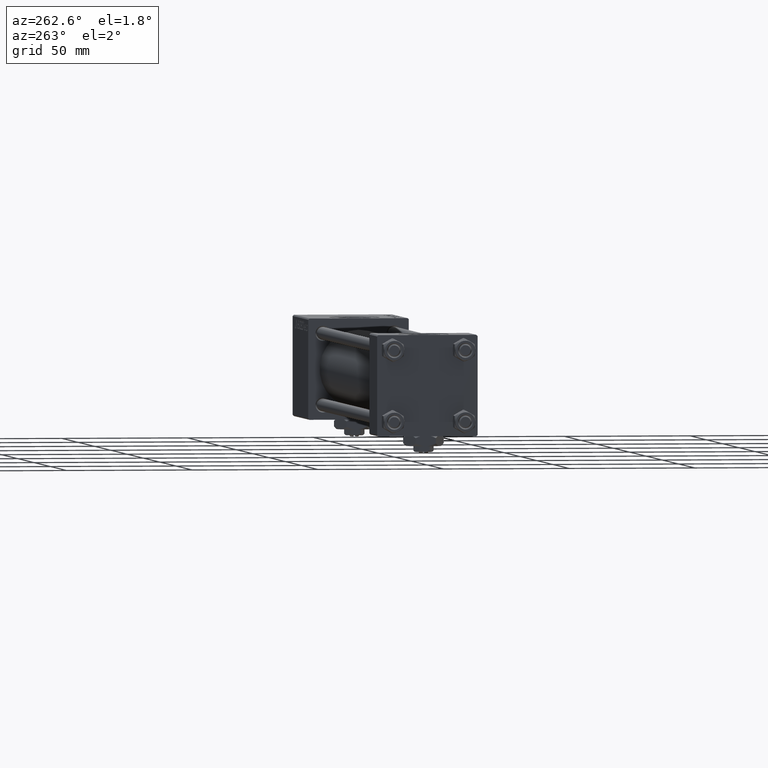
[diagram: clean part render]
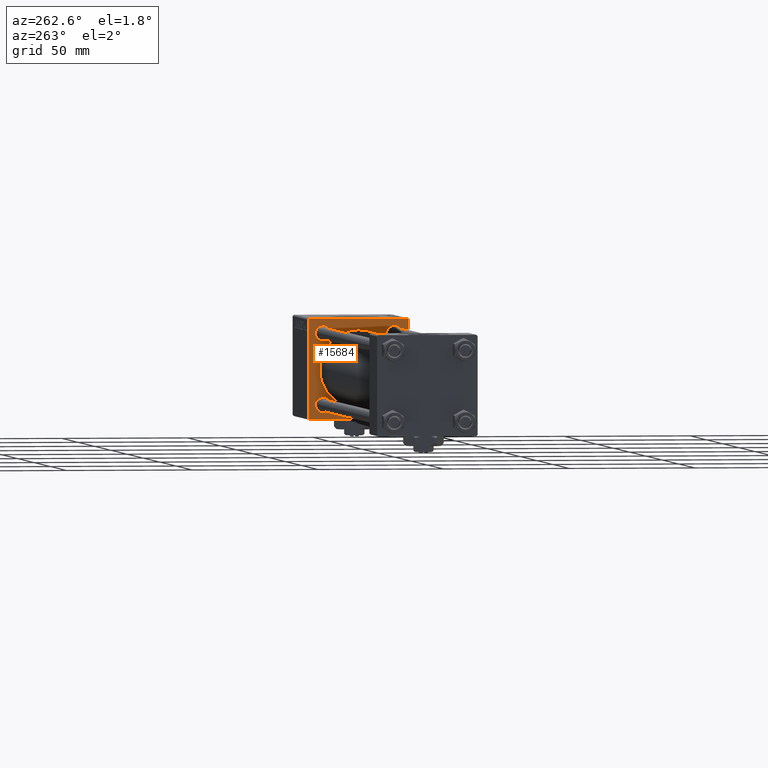
[diagram: same view with one face highlighted and labeled with its STEP entity id]
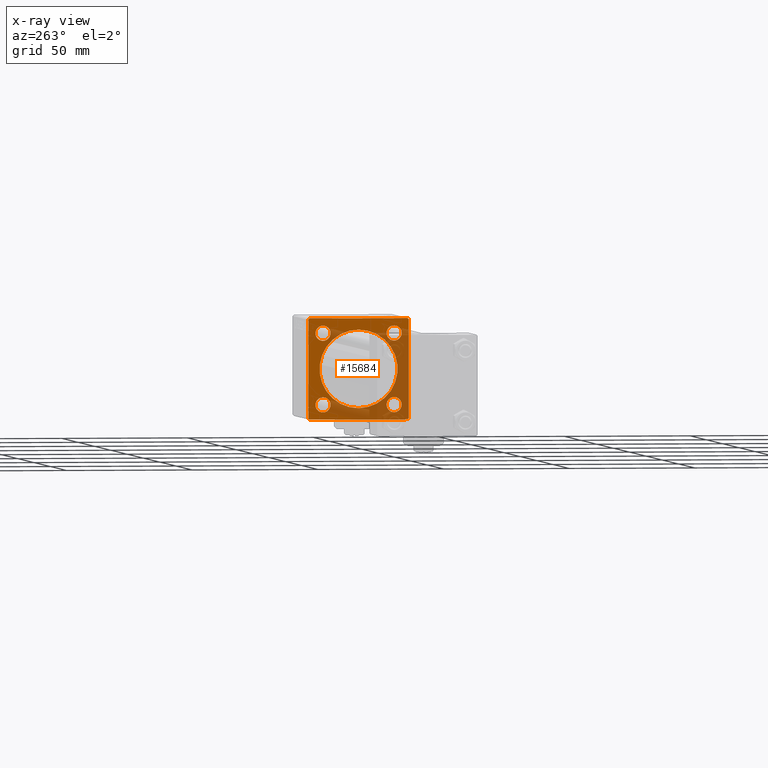
[diagram: x-ray of the same camera — body ghosted, the highlighted face saturated]
A machine part, auxiliary view. The second image highlights one B-rep face of the part: STEP entity #15684.
The next image is the same camera in x-ray: the body ghosted, the highlighted face saturated — about 47% of this face is hidden behind the body in this view.
In plain terms, the highlighted planar face has unit normal (-1, 0, 0).
Its self-contained STEP definition (entity closure, byte-faithful):
#75 = DIRECTION ( 'NONE',  ( 1.000000000000000000, 0.000000000000000000, 0.000000000000000000 ) ) ;
#728 = CIRCLE ( 'NONE', #51206, 3.000000000000004441 ) ;
#1265 = VERTEX_POINT ( 'NONE', #21354 ) ;
#1359 = CARTESIAN_POINT ( 'NONE',  ( 211.0000000000000000, 14.15000000000000036, 14.15000000000000036 ) ) ;
#1870 = VERTEX_POINT ( 'NONE', #7034 ) ;
#2232 = VERTEX_POINT ( 'NONE', #25380 ) ;
#3651 = AXIS2_PLACEMENT_3D ( 'NONE', #1359, #49317, #36931 ) ;
#4549 = AXIS2_PLACEMENT_3D ( 'NONE', #42421, #50079, #13975 ) ;
#5020 = EDGE_CURVE ( 'NONE', #1265, #51375, #19454, .T. ) ;
#5291 = PLANE ( 'NONE',  #4549 ) ;
#5565 = CARTESIAN_POINT ( 'NONE',  ( 211.0000000000000000, -20.00000000000000355, 19.50000000000002487 ) ) ;
#5827 = EDGE_CURVE ( 'NONE', #9705, #2232, #26220, .T. ) ;
#5895 = DIRECTION ( 'NONE',  ( 1.000000000000000000, 0.000000000000000000, 0.000000000000000000 ) ) ;
#5941 = CIRCLE ( 'NONE', #39613, 3.000000000000004441 ) ;
#6284 = DIRECTION ( 'NONE',  ( 1.000000000000000000, 0.000000000000000000, 0.000000000000000000 ) ) ;
#6431 = CARTESIAN_POINT ( 'NONE',  ( 211.0000000000000000, 19.99999999999999645, -19.50000000000000000 ) ) ;
#6702 = EDGE_CURVE ( 'NONE', #22552, #23600, #16183, .T. ) ;
#6711 = CARTESIAN_POINT ( 'NONE',  ( 211.0000000000000000, 14.15000000000000036, -17.15000000000000568 ) ) ;
#6972 = VERTEX_POINT ( 'NONE', #5565 ) ;
#7034 = CARTESIAN_POINT ( 'NONE',  ( 211.0000000000000000, 19.49999999999999645, -20.00000000000000000 ) ) ;
#7746 = EDGE_LOOP ( 'NONE', ( #8206, #32877, #32028, #27002, #10789, #30474, #43911, #12232 ) ) ;
#8206 = ORIENTED_EDGE ( 'NONE', *, *, #45152, .T. ) ;
#8807 = EDGE_LOOP ( 'NONE', ( #20201, #12100 ) ) ;
#8986 = VECTOR ( 'NONE', #17167, 1000.000000000000000 ) ;
#9705 = VERTEX_POINT ( 'NONE', #6711 ) ;
#10585 = DIRECTION ( 'NONE',  ( 1.000000000000000000, 0.000000000000000000, 0.000000000000000000 ) ) ;
#10789 = ORIENTED_EDGE ( 'NONE', *, *, #26759, .F. ) ;
#12100 = ORIENTED_EDGE ( 'NONE', *, *, #5827, .T. ) ;
#12232 = ORIENTED_EDGE ( 'NONE', *, *, #15954, .T. ) ;
#12757 = CIRCLE ( 'NONE', #30415, 3.000000000000004441 ) ;
#12765 = AXIS2_PLACEMENT_3D ( 'NONE', #39404, #31999, #27789 ) ;
#13049 = VECTOR ( 'NONE', #25177, 1000.000000000000114 ) ;
#13134 = VERTEX_POINT ( 'NONE', #27032 ) ;
#13531 = DIRECTION ( 'NONE',  ( 0.000000000000000000, -1.000000000000000000, -8.673617379884035472E-17 ) ) ;
#13684 = VECTOR ( 'NONE', #30166, 1000.000000000000000 ) ;
#13855 = ORIENTED_EDGE ( 'NONE', *, *, #39433, .T. ) ;
#13975 = DIRECTION ( 'NONE',  ( -0.000000000000000000, 0.000000000000000000, 1.000000000000000000 ) ) ;
#14490 = FACE_OUTER_BOUND ( 'NONE', #7746, .T. ) ;
#14977 = DIRECTION ( 'NONE',  ( 0.000000000000000000, 0.000000000000000000, 1.000000000000000000 ) ) ;
#15323 = CARTESIAN_POINT ( 'NONE',  ( 211.0000000000000000, -20.00000000000000000, -19.49999999999999645 ) ) ;
#15684 = ADVANCED_FACE ( 'NONE', ( #41912, #34508, #37953, #21884, #41391, #14490 ), #5291, .T. ) ;
#15954 = EDGE_CURVE ( 'NONE', #42156, #1870, #26451, .T. ) ;
#16061 = VECTOR ( 'NONE', #38820, 1000.000000000000000 ) ;
#16183 = CIRCLE ( 'NONE', #19531, 3.000000000000004441 ) ;
#16328 = VERTEX_POINT ( 'NONE', #15323 ) ;
#16926 = AXIS2_PLACEMENT_3D ( 'NONE', #22360, #18660, #50808 ) ;
#17167 = DIRECTION ( 'NONE',  ( 0.000000000000000000, 8.673617379884036705E-17, -1.000000000000000000 ) ) ;
#17506 = DIRECTION ( 'NONE',  ( 1.000000000000000000, 0.000000000000000000, 0.000000000000000000 ) ) ;
#17740 = LINE ( 'NONE', #45412, #40192 ) ;
#17758 = DIRECTION ( 'NONE',  ( 0.000000000000000000, 0.000000000000000000, -1.000000000000000000 ) ) ;
#17935 = EDGE_CURVE ( 'NONE', #20658, #22783, #49688, .T. ) ;
#18600 = EDGE_CURVE ( 'NONE', #22783, #42156, #23212, .T. ) ;
#18610 = ORIENTED_EDGE ( 'NONE', *, *, #50946, .T. ) ;
#18660 = DIRECTION ( 'NONE',  ( 1.000000000000000000, 0.000000000000000000, 0.000000000000000000 ) ) ;
#19239 = EDGE_LOOP ( 'NONE', ( #13855, #33271 ) ) ;
#19454 = CIRCLE ( 'NONE', #16926, 15.50000000000000000 ) ;
#19521 = CARTESIAN_POINT ( 'NONE',  ( 211.0000000000000000, 19.99999999999999645, 20.00000000000000000 ) ) ;
#19531 = AXIS2_PLACEMENT_3D ( 'NONE', #46461, #5895, #31166 ) ;
#19717 = CARTESIAN_POINT ( 'NONE',  ( 211.0000000000000000, -19.75000000000055067, -19.74999999999945288 ) ) ;
#19974 = DIRECTION ( 'NONE',  ( 0.000000000000000000, 0.000000000000000000, 1.000000000000000000 ) ) ;
#20201 = ORIENTED_EDGE ( 'NONE', *, *, #50084, .T. ) ;
#20234 = LINE ( 'NONE', #19717, #21676 ) ;
#20658 = VERTEX_POINT ( 'NONE', #25502 ) ;
#20737 = VERTEX_POINT ( 'NONE', #21807 ) ;
#21354 = CARTESIAN_POINT ( 'NONE',  ( 211.0000000000000000, -2.602085213965210642E-15, 15.50000000000000000 ) ) ;
#21676 = VECTOR ( 'NONE', #47638, 1000.000000000000000 ) ;
#21807 = CARTESIAN_POINT ( 'NONE',  ( 211.0000000000000000, -14.15000000000000036, -11.14999999999999680 ) ) ;
#21884 = FACE_BOUND ( 'NONE', #39995, .T. ) ;
#22078 = ORIENTED_EDGE ( 'NONE', *, *, #37525, .T. ) ;
#22360 = CARTESIAN_POINT ( 'NONE',  ( 211.0000000000000000, -2.602085213965210642E-15, 0.000000000000000000 ) ) ;
#22502 = CARTESIAN_POINT ( 'NONE',  ( 211.0000000000000000, 19.74999999999999645, -19.74999999999999645 ) ) ;
#22552 = VERTEX_POINT ( 'NONE', #31430 ) ;
#22624 = EDGE_CURVE ( 'NONE', #6972, #16328, #24821, .T. ) ;
#22783 = VERTEX_POINT ( 'NONE', #29157 ) ;
#23019 = CARTESIAN_POINT ( 'NONE',  ( 211.0000000000000000, -19.74999999999945999, 19.75000000000055067 ) ) ;
#23212 = LINE ( 'NONE', #19521, #31554 ) ;
#23600 = VERTEX_POINT ( 'NONE', #31887 ) ;
#23990 = AXIS2_PLACEMENT_3D ( 'NONE', #50171, #17506, #17758 ) ;
#24380 = DIRECTION ( 'NONE',  ( 0.000000000000000000, 0.000000000000000000, 1.000000000000000000 ) ) ;
#24821 = LINE ( 'NONE', #36938, #8986 ) ;
#25177 = DIRECTION ( 'NONE',  ( 0.000000000000000000, 0.7071067811865474617, -0.7071067811865474617 ) ) ;
#25380 = CARTESIAN_POINT ( 'NONE',  ( 211.0000000000000000, 14.15000000000000036, -11.14999999999999680 ) ) ;
#25502 = CARTESIAN_POINT ( 'NONE',  ( 211.0000000000000000, 19.49999999999999645, 20.00000000000000000 ) ) ;
#26220 = CIRCLE ( 'NONE', #12765, 3.000000000000004441 ) ;
#26331 = EDGE_LOOP ( 'NONE', ( #32143, #18610 ) ) ;
#26355 = CIRCLE ( 'NONE', #3651, 3.000000000000004441 ) ;
#26451 = LINE ( 'NONE', #22502, #38207 ) ;
#26566 = CARTESIAN_POINT ( 'NONE',  ( 211.0000000000000000, -14.15000000000000036, -14.15000000000000036 ) ) ;
#26759 = EDGE_CURVE ( 'NONE', #20658, #36890, #17740, .T. ) ;
#27002 = ORIENTED_EDGE ( 'NONE', *, *, #41330, .T. ) ;
#27032 = CARTESIAN_POINT ( 'NONE',  ( 211.0000000000000000, 14.15000000000000036, 11.14999999999999680 ) ) ;
#27789 = DIRECTION ( 'NONE',  ( 0.000000000000000000, 0.000000000000000000, 1.000000000000000000 ) ) ;
#28503 = CARTESIAN_POINT ( 'NONE',  ( 211.0000000000000000, 14.15000000000000036, 17.15000000000000568 ) ) ;
#28613 = LINE ( 'NONE', #44680, #13684 ) ;
#29157 = CARTESIAN_POINT ( 'NONE',  ( 211.0000000000000000, 19.99999999999999645, 19.50000000000000000 ) ) ;
#29425 = EDGE_CURVE ( 'NONE', #44116, #16328, #20234, .T. ) ;
#29885 = CIRCLE ( 'NONE', #39149, 3.000000000000004441 ) ;
#30166 = DIRECTION ( 'NONE',  ( 0.000000000000000000, -1.000000000000000000, 0.000000000000000000 ) ) ;
#30361 = ORIENTED_EDGE ( 'NONE', *, *, #51551, .T. ) ;
#30415 = AXIS2_PLACEMENT_3D ( 'NONE', #47636, #31034, #19974 ) ;
#30474 = ORIENTED_EDGE ( 'NONE', *, *, #17935, .T. ) ;
#31034 = DIRECTION ( 'NONE',  ( 1.000000000000000000, 0.000000000000000000, 0.000000000000000000 ) ) ;
#31088 = VERTEX_POINT ( 'NONE', #28503 ) ;
#31166 = DIRECTION ( 'NONE',  ( 0.000000000000000000, 0.000000000000000000, 1.000000000000000000 ) ) ;
#31398 = DIRECTION ( 'NONE',  ( 0.000000000000000000, 0.000000000000000000, 1.000000000000000000 ) ) ;
#31430 = CARTESIAN_POINT ( 'NONE',  ( 211.0000000000000000, -14.15000000000000036, 11.14999999999999503 ) ) ;
#31554 = VECTOR ( 'NONE', #51663, 1000.000000000000000 ) ;
#31887 = CARTESIAN_POINT ( 'NONE',  ( 211.0000000000000000, -14.15000000000000036, 17.15000000000000568 ) ) ;
#31999 = DIRECTION ( 'NONE',  ( 1.000000000000000000, 0.000000000000000000, 0.000000000000000000 ) ) ;
#32020 = DIRECTION ( 'NONE',  ( 1.000000000000000000, 0.000000000000000000, 0.000000000000000000 ) ) ;
#32028 = ORIENTED_EDGE ( 'NONE', *, *, #22624, .F. ) ;
#32143 = ORIENTED_EDGE ( 'NONE', *, *, #5020, .T. ) ;
#32413 = EDGE_CURVE ( 'NONE', #32677, #20737, #728, .T. ) ;
#32677 = VERTEX_POINT ( 'NONE', #43043 ) ;
#32810 = ORIENTED_EDGE ( 'NONE', *, *, #6702, .T. ) ;
#32877 = ORIENTED_EDGE ( 'NONE', *, *, #29425, .T. ) ;
#33271 = ORIENTED_EDGE ( 'NONE', *, *, #46597, .T. ) ;
#33293 = ORIENTED_EDGE ( 'NONE', *, *, #32413, .T. ) ;
#34508 = FACE_BOUND ( 'NONE', #19239, .T. ) ;
#36890 = VERTEX_POINT ( 'NONE', #45055 ) ;
#36931 = DIRECTION ( 'NONE',  ( 0.000000000000000000, 0.000000000000000000, 1.000000000000000000 ) ) ;
#36938 = CARTESIAN_POINT ( 'NONE',  ( 211.0000000000000000, -20.00000000000000355, 19.99999999999999645 ) ) ;
#37525 = EDGE_CURVE ( 'NONE', #23600, #22552, #5941, .T. ) ;
#37818 = CARTESIAN_POINT ( 'NONE',  ( 211.0000000000000000, 19.74999999999999645, 19.74999999999999645 ) ) ;
#37953 = FACE_BOUND ( 'NONE', #8807, .T. ) ;
#38207 = VECTOR ( 'NONE', #42782, 1000.000000000000114 ) ;
#38289 = EDGE_LOOP ( 'NONE', ( #22078, #32810 ) ) ;
#38771 = CARTESIAN_POINT ( 'NONE',  ( 211.0000000000000000, -14.15000000000000036, 14.15000000000000036 ) ) ;
#38820 = DIRECTION ( 'NONE',  ( -0.000000000000000000, 0.7071067811865671127, 0.7071067811865279218 ) ) ;
#39149 = AXIS2_PLACEMENT_3D ( 'NONE', #26566, #6284, #14977 ) ;
#39404 = CARTESIAN_POINT ( 'NONE',  ( 211.0000000000000000, 14.15000000000000036, -14.15000000000000036 ) ) ;
#39433 = EDGE_CURVE ( 'NONE', #31088, #13134, #12757, .T. ) ;
#39613 = AXIS2_PLACEMENT_3D ( 'NONE', #38771, #10585, #31398 ) ;
#39995 = EDGE_LOOP ( 'NONE', ( #30361, #33293 ) ) ;
#40126 = CARTESIAN_POINT ( 'NONE',  ( 211.0000000000000000, 14.15000000000000036, -14.15000000000000036 ) ) ;
#40192 = VECTOR ( 'NONE', #13531, 1000.000000000000000 ) ;
#40806 = AXIS2_PLACEMENT_3D ( 'NONE', #40126, #75, #48296 ) ;
#41330 = EDGE_CURVE ( 'NONE', #6972, #36890, #47784, .T. ) ;
#41391 = FACE_BOUND ( 'NONE', #26331, .T. ) ;
#41912 = FACE_BOUND ( 'NONE', #38289, .T. ) ;
#42156 = VERTEX_POINT ( 'NONE', #6431 ) ;
#42421 = CARTESIAN_POINT ( 'NONE',  ( 211.0000000000000000, 0.000000000000000000, 0.000000000000000000 ) ) ;
#42782 = DIRECTION ( 'NONE',  ( -0.000000000000000000, -0.7071067811865474617, -0.7071067811865474617 ) ) ;
#43043 = CARTESIAN_POINT ( 'NONE',  ( 211.0000000000000000, -14.15000000000000036, -17.15000000000000568 ) ) ;
#43911 = ORIENTED_EDGE ( 'NONE', *, *, #18600, .T. ) ;
#44116 = VERTEX_POINT ( 'NONE', #52064 ) ;
#44680 = CARTESIAN_POINT ( 'NONE',  ( 211.0000000000000000, 19.99999999999999645, -20.00000000000000000 ) ) ;
#45055 = CARTESIAN_POINT ( 'NONE',  ( 211.0000000000000000, -19.50000000000000355, 19.99999999999999645 ) ) ;
#45152 = EDGE_CURVE ( 'NONE', #1870, #44116, #28613, .T. ) ;
#45412 = CARTESIAN_POINT ( 'NONE',  ( 211.0000000000000000, 19.99999999999999645, 20.00000000000000000 ) ) ;
#46461 = CARTESIAN_POINT ( 'NONE',  ( 211.0000000000000000, -14.15000000000000036, 14.15000000000000036 ) ) ;
#46597 = EDGE_CURVE ( 'NONE', #13134, #31088, #26355, .T. ) ;
#46699 = CIRCLE ( 'NONE', #23990, 15.50000000000000000 ) ;
#47636 = CARTESIAN_POINT ( 'NONE',  ( 211.0000000000000000, 14.15000000000000036, 14.15000000000000036 ) ) ;
#47638 = DIRECTION ( 'NONE',  ( 0.000000000000000000, -0.7071067811865279218, 0.7071067811865672237 ) ) ;
#47784 = LINE ( 'NONE', #23019, #16061 ) ;
#48296 = DIRECTION ( 'NONE',  ( 0.000000000000000000, 0.000000000000000000, 1.000000000000000000 ) ) ;
#48418 = CIRCLE ( 'NONE', #40806, 3.000000000000004441 ) ;
#48628 = CARTESIAN_POINT ( 'NONE',  ( 211.0000000000000000, -14.15000000000000036, -14.15000000000000036 ) ) ;
#49005 = CARTESIAN_POINT ( 'NONE',  ( 211.0000000000000000, -7.038826752868131828E-16, -15.50000000000000000 ) ) ;
#49317 = DIRECTION ( 'NONE',  ( 1.000000000000000000, 0.000000000000000000, 0.000000000000000000 ) ) ;
#49688 = LINE ( 'NONE', #37818, #13049 ) ;
#50079 = DIRECTION ( 'NONE',  ( -1.000000000000000000, 0.000000000000000000, -0.000000000000000000 ) ) ;
#50084 = EDGE_CURVE ( 'NONE', #2232, #9705, #48418, .T. ) ;
#50171 = CARTESIAN_POINT ( 'NONE',  ( 211.0000000000000000, -2.602085213965210642E-15, 0.000000000000000000 ) ) ;
#50808 = DIRECTION ( 'NONE',  ( 0.000000000000000000, 0.000000000000000000, -1.000000000000000000 ) ) ;
#50946 = EDGE_CURVE ( 'NONE', #51375, #1265, #46699, .T. ) ;
#51206 = AXIS2_PLACEMENT_3D ( 'NONE', #48628, #32020, #24380 ) ;
#51375 = VERTEX_POINT ( 'NONE', #49005 ) ;
#51551 = EDGE_CURVE ( 'NONE', #20737, #32677, #29885, .T. ) ;
#51663 = DIRECTION ( 'NONE',  ( 0.000000000000000000, 0.000000000000000000, -1.000000000000000000 ) ) ;
#52064 = CARTESIAN_POINT ( 'NONE',  ( 211.0000000000000000, -19.50000000000002487, -20.00000000000000000 ) ) ;